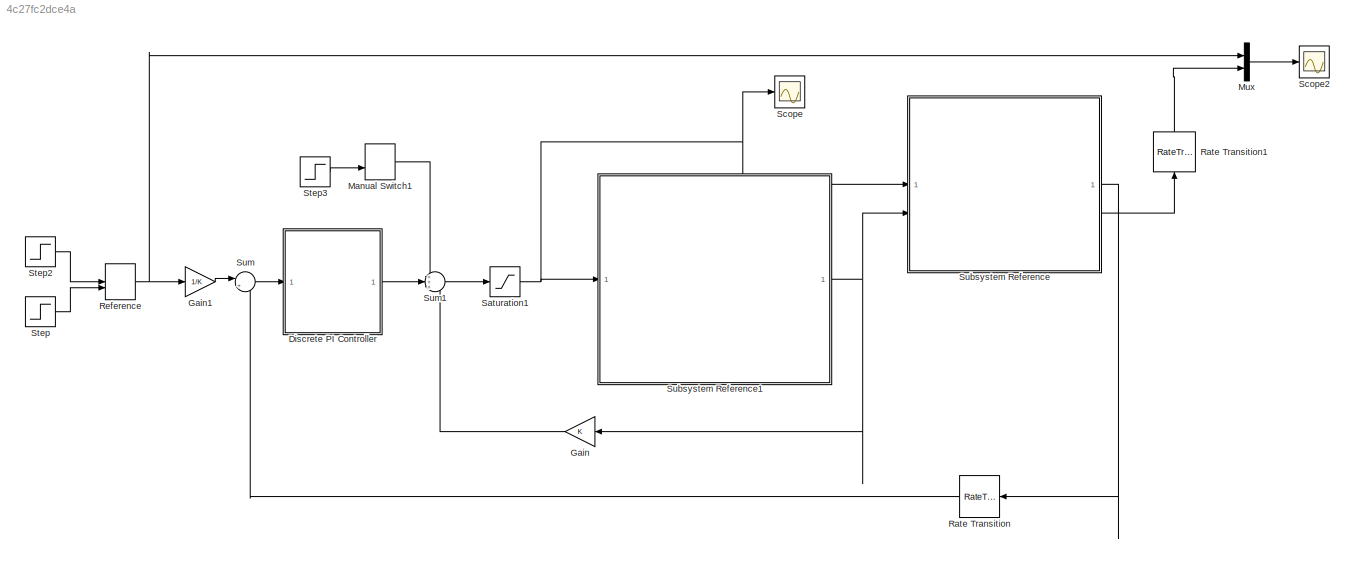
MODEL slx_4c27fc2dce4a
KIND model
CONFIG AbsTol = auto
CONFIG EnableMultiTasking = off
CONFIG FixedStep = 0.001
CONFIG MaxStep = auto
CONFIG MinStep = auto
CONFIG RelTol = 1e-10
CONFIG SampleTimeConstraint = Unconstrained
CONFIG SolverName = VariableStepAuto
CONFIG StartTime = 0.0
CONFIG StopTime = 3.5
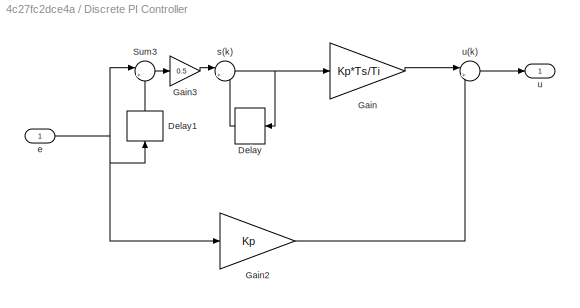
BLOCK [SubSystem] Discrete PI Controller
BLOCK [Delay] Discrete PI Controller/Delay
  DelayLength = 1
  InitialCondition = 0
  InputPortMap = u0
  NameLocation = top
  UseCircularBuffer = on
  UserDataPersistent = on
BLOCK [Delay] Discrete PI Controller/Delay1
  DelayLength = 1
  InitialCondition = 0
  InputPortMap = u0
  NameLocation = right
  UseCircularBuffer = on
  UserDataPersistent = on
BLOCK [Gain] Discrete PI Controller/Gain
  Gain = Kp*Ts/Ti
BLOCK [Gain] Discrete PI Controller/Gain2
  Gain = Kp
BLOCK [Gain] Discrete PI Controller/Gain3
  Gain = 0.5
BLOCK [Sum] Discrete PI Controller/Sum3
  Inputs = |++
BLOCK [Inport] Discrete PI Controller/e
  SampleTime = Ts
BLOCK [Sum] Discrete PI Controller/s(k)
  Inputs = |++
  NameLocation = top
BLOCK [Outport] Discrete PI Controller/u
  SampleTime = Ts
BLOCK [Sum] Discrete PI Controller/u(k)
  Inputs = |++
  NameLocation = top
BLOCK [Gain] Gain
  Gain = K
  NameLocation = top
BLOCK [Gain] Gain1
  Gain = 1/K
BLOCK [ManualSwitch] Manual Switch1
BLOCK [Mux] Mux
  DisplayOption = bar
  Inputs = 2
BLOCK [RateTransition] Rate Transition
  NameLocation = top
  OutPortSampleTime = Ts
BLOCK [RateTransition] Rate Transition1
  NameLocation = right
  OutPortSampleTime = Ts
BLOCK [ManualSwitch] Reference
BLOCK [Saturate] Saturation1
  LowerLimit = -12
  UpperLimit = 12
BLOCK [Scope] Scope
  Floating = off
  NumInputPorts = 1
  ScopeSpecificationString = Simulink.scopes.TimeScopeBlockCfg('CurrentConfiguration', extmgr.ConfigurationSet(extmgr.Configuration('Core','General UI',true),extmgr.Configuration('Core','Source UI',true),extmgr.Configuration('Sources','WiredSimulink',true),extmgr.Configuration('Visuals','Time Domain',true),extmgr.Configuration('Tools','Plot Navigation',true),extmgr.Configuration('Tools','Measurements',true)),'Version','2023b'...<+1ch>
BLOCK [Scope] Scope2
  Floating = off
  NumInputPorts = 1
  ScopeSpecificationString = Simulink.scopes.TimeScopeBlockCfg('CurrentConfiguration', extmgr.ConfigurationSet(extmgr.Configuration('Core','General UI',true),extmgr.Configuration('Core','Source UI',true),extmgr.Configuration('Sources','WiredSimulink',true,'DataLoggingVariableName','ScopeData2'),extmgr.Configuration('Visuals','Time Domain',true,'TimeAxisLabels','All','SerializedDisplays',{struct('MinYLimReal','-0.01875','MaxYL...<+2085ch>
BLOCK [Step] Step
  After = 0
  Before = 1
  SampleTime = 0
  Time = 2
BLOCK [Step] Step2
  After = 0.15
  SampleTime = 0
  Time = 0
BLOCK [Step] Step3
  After = -0.1
  SampleTime = 0
  Time = 2
BLOCK [SubSystem] Subsystem Reference
  K = 1.339
  L = 2.3e-3
  R = 1.7
  ReferencedSubsystem = pololu_37D_torque_first_order
BLOCK [SubSystem] Subsystem Reference1
  ReferencedSubsystem = pololu_37D_pos_second_order
BLOCK [Sum] Sum
  Inputs = |+-
BLOCK [Sum] Sum1
  Inputs = +++
LINE Discrete PI Controller/Delay1:1 -> Discrete PI Controller/Sum3:2
LINE Discrete PI Controller/Delay:1 -> Discrete PI Controller/s(k):2
LINE Discrete PI Controller/Gain2:1 -> Discrete PI Controller/u(k):2
LINE Discrete PI Controller/Gain3:1 -> Discrete PI Controller/s(k):1
LINE Discrete PI Controller/Gain:1 -> Discrete PI Controller/u(k):1
LINE Discrete PI Controller/Sum3:1 -> Discrete PI Controller/Gain3:1
NET Discrete PI Controller/e:1 -> Discrete PI Controller/Delay1:1, Discrete PI Controller/Gain2:1, Discrete PI Controller/Sum3:1
NET Discrete PI Controller/s(k):1 -> Discrete PI Controller/Delay:1, Discrete PI Controller/Gain:1
LINE Discrete PI Controller/u(k):1 -> Discrete PI Controller/u:1
LINE Discrete PI Controller:1 -> Sum1:2
LINE Gain1:1 -> Sum:1
LINE Gain:1 -> Sum1:3
LINE Manual Switch1:1 -> Sum1:1
LINE Mux:1 -> Scope2:1
LINE Rate Transition1:1 -> Mux:2
LINE Rate Transition:1 -> Sum:2
NET Reference:1 -> Gain1:1, Mux:1
NET Saturation1:1 -> Scope:1, Subsystem Reference1:1, Subsystem Reference:1
LINE Step2:1 -> Reference:1
LINE Step3:1 -> Manual Switch1:2
LINE Step:1 -> Reference:2
NET Subsystem Reference1:1 -> Gain:1, Subsystem Reference:2
LINE Subsystem Reference:1 -> Rate Transition:1
LINE Subsystem Reference:2 -> Rate Transition1:1
LINE Sum1:1 -> Saturation1:1
LINE Sum:1 -> Discrete PI Controller:1
note: NET lines group one-source signal fan-out (src -> all destinations, sorted); 1:1 wires keep LINE
